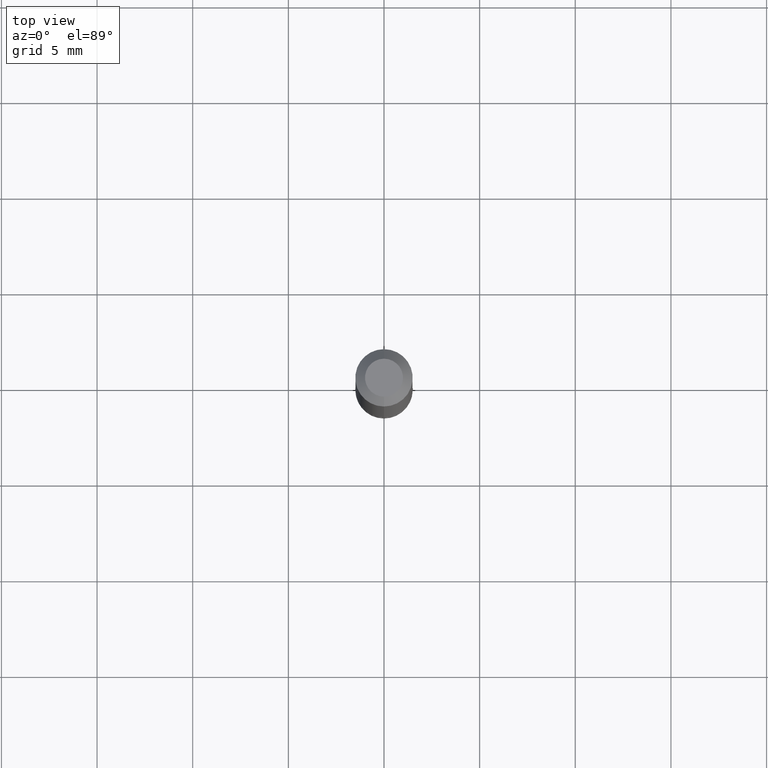
[diagram: clean part render]
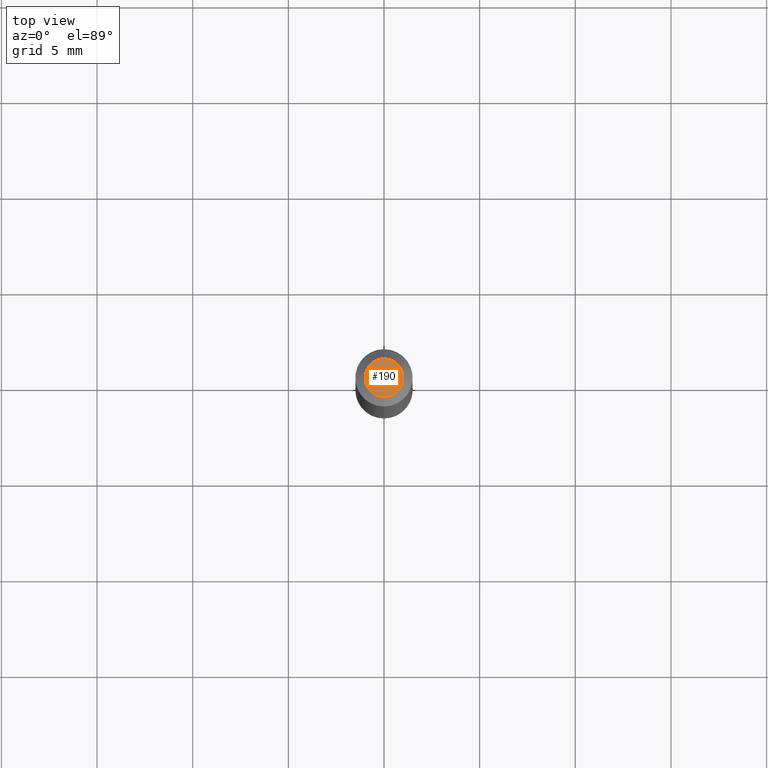
[diagram: same view with one face highlighted and labeled with its STEP entity id]
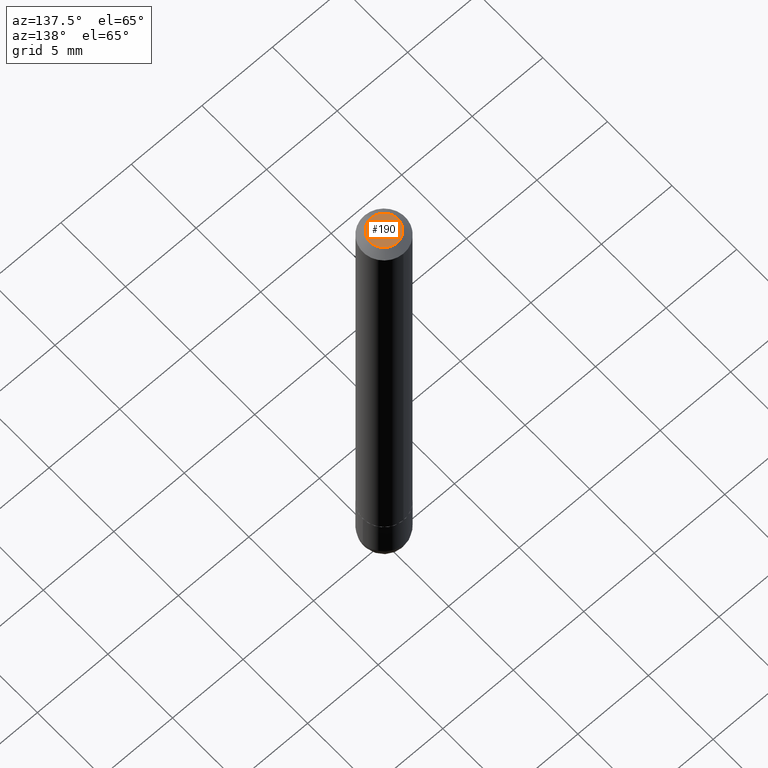
[diagram: same view with one face highlighted and labeled with its STEP entity id]
A machine part, top view. The second image highlights one B-rep face of the part: STEP entity #190.
A second angle (auxiliary view) of the same face is appended — the face is thin or edge-on in the first view.
In plain terms, the highlighted planar face has unit normal (0, -0, -1).
Its self-contained STEP definition (entity closure, byte-faithful):
#5 = ORIENTED_EDGE ( 'NONE', *, *, #369, .T. ) ;
#72 = DIRECTION ( 'NONE',  ( -2.445938730795303738E-29, 3.490808380054938555E-15, 1.000000000000000000 ) ) ;
#81 = VERTEX_POINT ( 'NONE', #345 ) ;
#83 = DIRECTION ( 'NONE',  ( 6.982962677686265922E-15, 1.000000000000000000, -3.490808380054938555E-15 ) ) ;
#101 = DIRECTION ( 'NONE',  ( -6.982962677686265133E-15, -1.000000000000000000, 3.490808380054938161E-15 ) ) ;
#134 = DIRECTION ( 'NONE',  ( -6.982962677686265133E-15, -1.000000000000000000, 3.490808380054938161E-15 ) ) ;
#190 = ADVANCED_FACE ( 'NONE', ( #359 ), #311, .F. ) ;
#191 = AXIS2_PLACEMENT_3D ( 'NONE', #242, #338, #83 ) ;
#196 = AXIS2_PLACEMENT_3D ( 'NONE', #331, #72, #134 ) ;
#210 = AXIS2_PLACEMENT_3D ( 'NONE', #299, #394, #101 ) ;
#242 = CARTESIAN_POINT ( 'NONE',  ( 2.726846925636489647E-16, 0.03905000000000004301, -1.427319754966358813E-16 ) ) ;
#289 = CIRCLE ( 'NONE', #196, 0.03905000000000004301 ) ;
#299 = CARTESIAN_POINT ( 'NONE',  ( 3.138583699066647381E-46, -4.479341260785891891E-32, -1.283181651098074832E-17 ) ) ;
#311 = PLANE ( 'NONE',  #191 ) ;
#331 = CARTESIAN_POINT ( 'NONE',  ( 3.138583699066647381E-46, -4.479341260785891891E-32, -1.283181651098074832E-17 ) ) ;
#336 = VERTEX_POINT ( 'NONE', #372 ) ;
#338 = DIRECTION ( 'NONE',  ( 2.445938730795303458E-29, -3.490808380054938555E-15, -1.000000000000000000 ) ) ;
#342 = EDGE_CURVE ( 'NONE', #336, #81, #386, .T. ) ;
#345 = CARTESIAN_POINT ( 'NONE',  ( 3.425143193405117699E-16, 0.03905000000000004301, -1.491478837521262555E-16 ) ) ;
#359 = FACE_OUTER_BOUND ( 'NONE', #400, .T. ) ;
#369 = EDGE_CURVE ( 'NONE', #81, #336, #289, .T. ) ;
#372 = CARTESIAN_POINT ( 'NONE',  ( -3.365074267906934875E-16, -0.03905000000000004301, 1.234842507301647588E-16 ) ) ;
#386 = CIRCLE ( 'NONE', #210, 0.03905000000000004301 ) ;
#389 = ORIENTED_EDGE ( 'NONE', *, *, #342, .T. ) ;
#394 = DIRECTION ( 'NONE',  ( -2.445938730795303738E-29, 3.490808380054938555E-15, 1.000000000000000000 ) ) ;
#400 = EDGE_LOOP ( 'NONE', ( #5, #389 ) ) ;